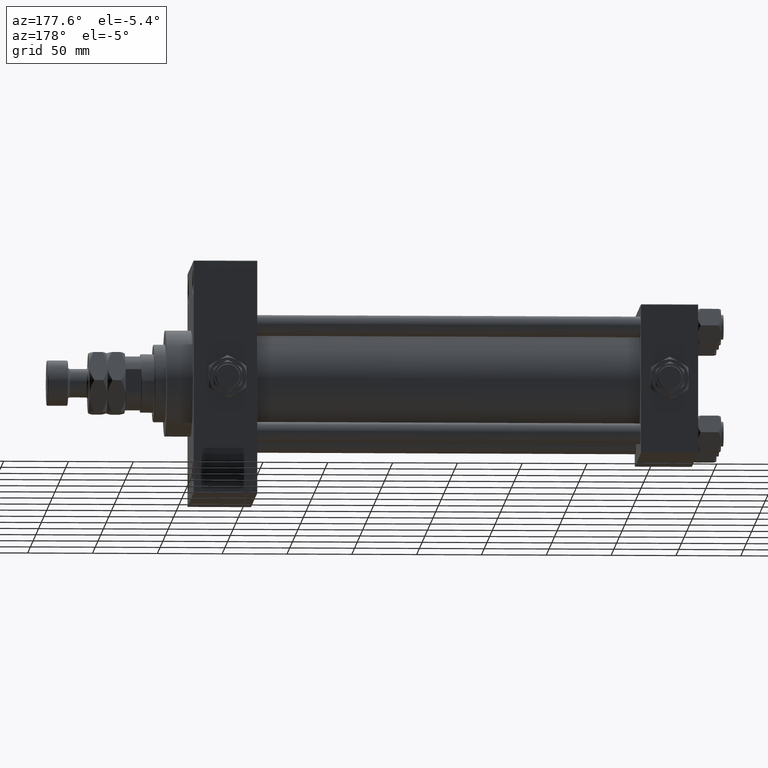
[diagram: clean part render]
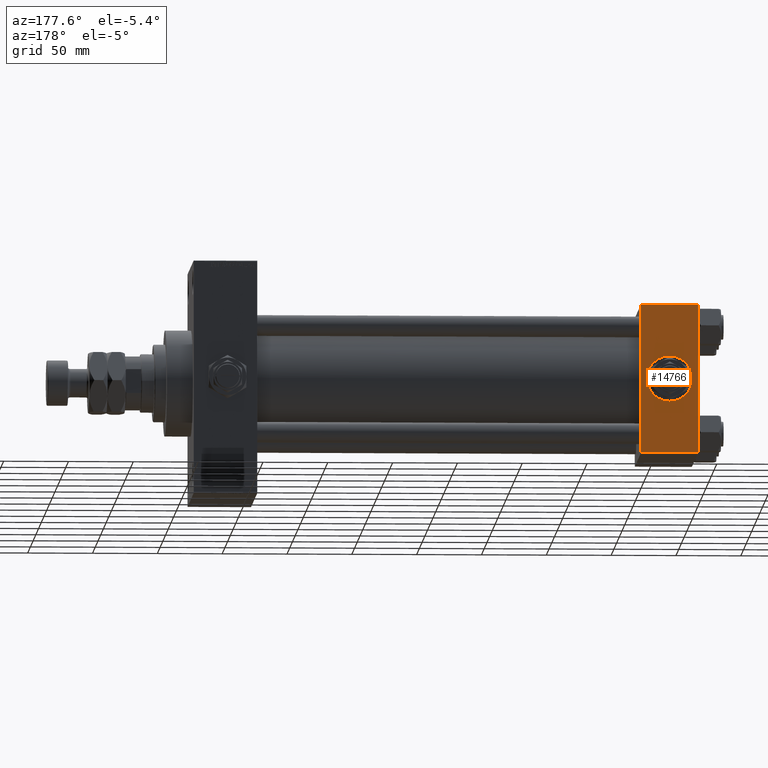
[diagram: same view with one face highlighted and labeled with its STEP entity id]
A machine part, auxiliary view. The second image highlights one B-rep face of the part: STEP entity #14766.
In plain terms, the highlighted planar face has unit normal (0, 1, 0).
Its self-contained STEP definition (entity closure, byte-faithful):
#1182 = FACE_BOUND ( 'NONE', #36479, .T. ) ;
#1198 = EDGE_CURVE ( 'NONE', #13974, #39517, #42127, .T. ) ;
#3970 = ORIENTED_EDGE ( 'NONE', *, *, #30155, .F. ) ;
#4138 = ORIENTED_EDGE ( 'NONE', *, *, #48884, .T. ) ;
#4467 = CARTESIAN_POINT ( 'NONE',  ( 44.00000000000000000, 57.49999999999999289, -57.00000000000000711 ) ) ;
#5431 = VECTOR ( 'NONE', #41427, 1000.000000000000000 ) ;
#6118 = CARTESIAN_POINT ( 'NONE',  ( 44.00000000000000000, 57.49999999999999289, 57.50000000000000711 ) ) ;
#7276 = CARTESIAN_POINT ( 'NONE',  ( 0.000000000000000000, 57.49999999999999289, -57.00000000000000711 ) ) ;
#7742 = LINE ( 'NONE', #22855, #38446 ) ;
#8724 = DIRECTION ( 'NONE',  ( 0.000000000000000000, 0.000000000000000000, 1.000000000000000000 ) ) ;
#8745 = ORIENTED_EDGE ( 'NONE', *, *, #1198, .F. ) ;
#9393 = LINE ( 'NONE', #13291, #5431 ) ;
#11133 = AXIS2_PLACEMENT_3D ( 'NONE', #22261, #30096, #46503 ) ;
#13000 = CARTESIAN_POINT ( 'NONE',  ( 22.00000000000000000, 57.49999999999999289, 17.50000000000000000 ) ) ;
#13291 = CARTESIAN_POINT ( 'NONE',  ( 0.000000000000000000, 57.49999999999999289, 57.50000000000000711 ) ) ;
#13974 = VERTEX_POINT ( 'NONE', #13000 ) ;
#14766 = ADVANCED_FACE ( 'NONE', ( #1182, #17048 ), #32952, .T. ) ;
#15543 = EDGE_CURVE ( 'NONE', #28193, #25136, #7742, .T. ) ;
#15561 = CARTESIAN_POINT ( 'NONE',  ( 44.00000000000000000, 57.49999999999999289, 57.00000000000003553 ) ) ;
#17048 = FACE_OUTER_BOUND ( 'NONE', #42897, .T. ) ;
#17705 = VERTEX_POINT ( 'NONE', #37932 ) ;
#18311 = ORIENTED_EDGE ( 'NONE', *, *, #20246, .F. ) ;
#19658 = AXIS2_PLACEMENT_3D ( 'NONE', #47578, #47830, #8724 ) ;
#19774 = VERTEX_POINT ( 'NONE', #7276 ) ;
#20246 = EDGE_CURVE ( 'NONE', #39517, #13974, #33589, .T. ) ;
#22261 = CARTESIAN_POINT ( 'NONE',  ( 22.00000000000000000, 57.49999999999999289, 0.000000000000000000 ) ) ;
#22855 = CARTESIAN_POINT ( 'NONE',  ( 44.00000000000000000, 57.49999999999999289, 57.50000000000000711 ) ) ;
#24232 = DIRECTION ( 'NONE',  ( -1.000000000000000000, 0.000000000000000000, 0.000000000000000000 ) ) ;
#24736 = LINE ( 'NONE', #44030, #36580 ) ;
#25136 = VERTEX_POINT ( 'NONE', #4467 ) ;
#25894 = AXIS2_PLACEMENT_3D ( 'NONE', #6118, #34763, #30360 ) ;
#25957 = ORIENTED_EDGE ( 'NONE', *, *, #28578, .T. ) ;
#27163 = CARTESIAN_POINT ( 'NONE',  ( 22.00000000000000355, 57.49999999999999289, -17.50000000000000000 ) ) ;
#28193 = VERTEX_POINT ( 'NONE', #15561 ) ;
#28578 = EDGE_CURVE ( 'NONE', #17705, #28193, #49289, .T. ) ;
#30096 = DIRECTION ( 'NONE',  ( 0.000000000000000000, 1.000000000000000000, 0.000000000000000000 ) ) ;
#30155 = EDGE_CURVE ( 'NONE', #17705, #19774, #9393, .T. ) ;
#30360 = DIRECTION ( 'NONE',  ( 0.000000000000000000, -0.000000000000000000, 1.000000000000000000 ) ) ;
#32952 = PLANE ( 'NONE',  #25894 ) ;
#33589 = CIRCLE ( 'NONE', #11133, 17.50000000000000000 ) ;
#34763 = DIRECTION ( 'NONE',  ( -0.000000000000000000, 1.000000000000000000, 0.000000000000000000 ) ) ;
#35312 = VECTOR ( 'NONE', #37289, 1000.000000000000000 ) ;
#36479 = EDGE_LOOP ( 'NONE', ( #8745, #18311 ) ) ;
#36580 = VECTOR ( 'NONE', #24232, 1000.000000000000000 ) ;
#37289 = DIRECTION ( 'NONE',  ( 1.000000000000000000, 0.000000000000000000, 0.000000000000000000 ) ) ;
#37932 = CARTESIAN_POINT ( 'NONE',  ( 0.000000000000000000, 57.49999999999999289, 57.00000000000003553 ) ) ;
#38446 = VECTOR ( 'NONE', #51504, 1000.000000000000000 ) ;
#39517 = VERTEX_POINT ( 'NONE', #27163 ) ;
#41427 = DIRECTION ( 'NONE',  ( 0.000000000000000000, 0.000000000000000000, -1.000000000000000000 ) ) ;
#42127 = CIRCLE ( 'NONE', #19658, 17.50000000000000000 ) ;
#42897 = EDGE_LOOP ( 'NONE', ( #45798, #4138, #3970, #25957 ) ) ;
#44030 = CARTESIAN_POINT ( 'NONE',  ( 44.00000000000000000, 57.49999999999999289, -57.00000000000000711 ) ) ;
#45638 = CARTESIAN_POINT ( 'NONE',  ( 44.00000000000000000, 57.49999999999999289, 57.00000000000003553 ) ) ;
#45798 = ORIENTED_EDGE ( 'NONE', *, *, #15543, .T. ) ;
#46503 = DIRECTION ( 'NONE',  ( 0.000000000000000000, 0.000000000000000000, 1.000000000000000000 ) ) ;
#47578 = CARTESIAN_POINT ( 'NONE',  ( 22.00000000000000000, 57.49999999999999289, 0.000000000000000000 ) ) ;
#47830 = DIRECTION ( 'NONE',  ( 0.000000000000000000, 1.000000000000000000, 0.000000000000000000 ) ) ;
#48884 = EDGE_CURVE ( 'NONE', #25136, #19774, #24736, .T. ) ;
#49289 = LINE ( 'NONE', #45638, #35312 ) ;
#51504 = DIRECTION ( 'NONE',  ( 0.000000000000000000, 0.000000000000000000, -1.000000000000000000 ) ) ;